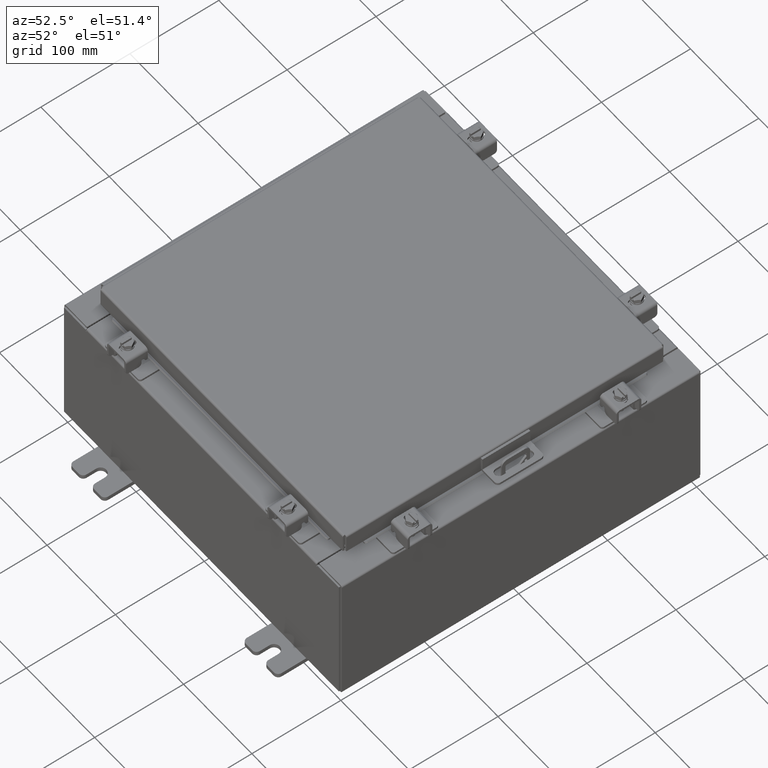
[diagram: clean part render]
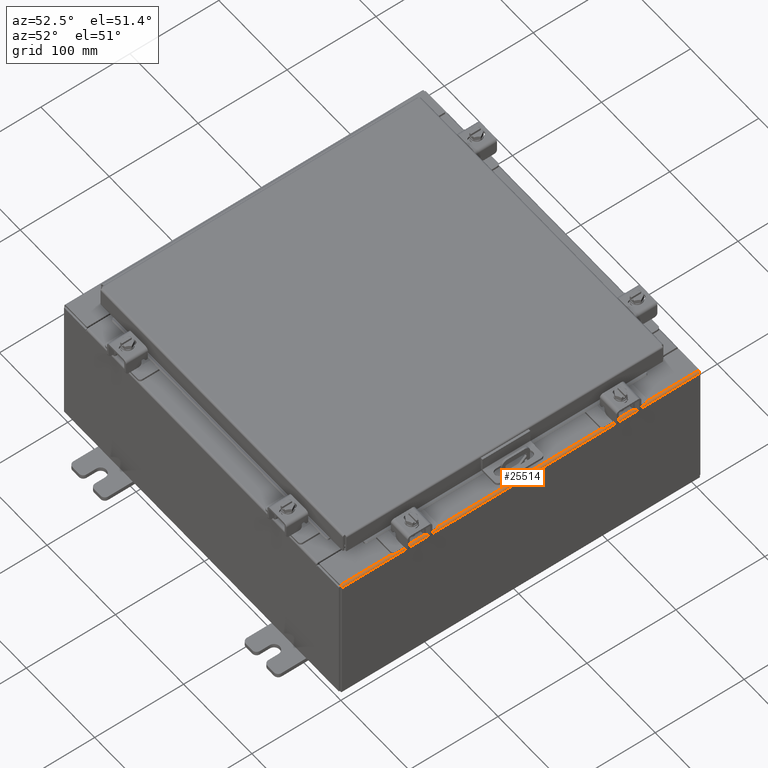
[diagram: same view with one face highlighted and labeled with its STEP entity id]
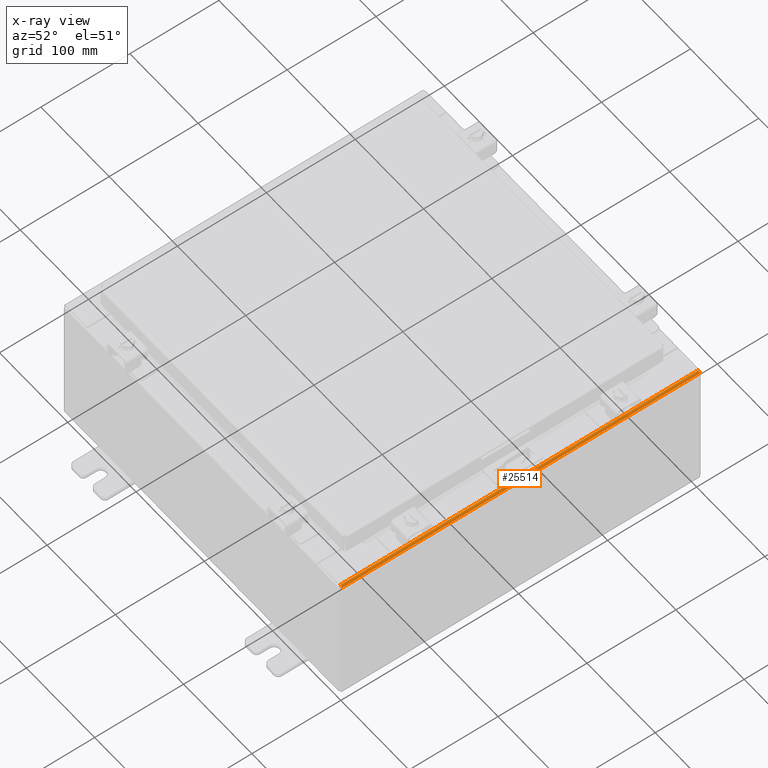
[diagram: x-ray of the same camera — body ghosted, the highlighted face saturated]
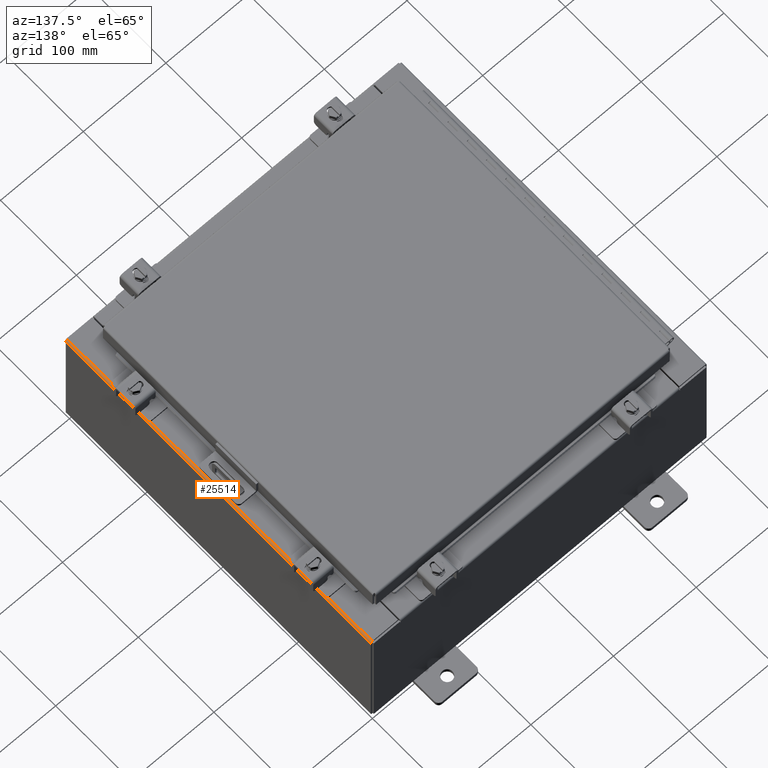
[diagram: same view with one face highlighted and labeled with its STEP entity id]
A machine part, auxiliary view. The second image highlights one B-rep face of the part: STEP entity #25514.
The next image is the same camera in x-ray: the body ghosted, the highlighted face saturated — about 0% of this face is hidden behind the body in this view.
A second angle (auxiliary view) of the same face is appended — the face is thin or edge-on in the first view.
In plain terms, the highlighted cylindrical surface (edge-blend (fillet) strip) has radius 2.2276 mm, axis along (0, 1, 0).
Its self-contained STEP definition (entity closure, byte-faithful):
#2 = EDGE_CURVE ( 'NONE', #3534, #548, #11183, .T. ) ;
#11 = AXIS2_PLACEMENT_3D ( 'NONE', #1379, #13416, #11382 ) ;
#112 = EDGE_CURVE ( 'NONE', #23747, #25013, #3981, .T. ) ;
#487 = CARTESIAN_POINT ( 'NONE',  ( 8.000000000000019500, -7.925300000000000000, 5.837600000000001000 ) ) ;
#548 = VERTEX_POINT ( 'NONE', #23756 ) ;
#1379 = CARTESIAN_POINT ( 'NONE',  ( 7.912300000000019700, 7.925300000000000000, 5.837600000000001000 ) ) ;
#2254 = CYLINDRICAL_SURFACE ( 'NONE', #11, 0.08770000000000026400 ) ;
#3534 = VERTEX_POINT ( 'NONE', #487 ) ;
#3981 = CIRCLE ( 'NONE', #10032, 0.08770000000000026400 ) ;
#5161 = EDGE_LOOP ( 'NONE', ( #6844, #15019, #10814, #18600 ) ) ;
#6547 = LINE ( 'NONE', #23623, #16619 ) ;
#6763 = EDGE_CURVE ( 'NONE', #23747, #548, #13440, .T. ) ;
#6844 = ORIENTED_EDGE ( 'NONE', *, *, #14342, .F. ) ;
#7123 = CARTESIAN_POINT ( 'NONE',  ( 7.912300000000019700, -7.925300000000000000, 5.925300000000001800 ) ) ;
#8066 = CARTESIAN_POINT ( 'NONE',  ( 7.912300000000019700, -7.925300000000000000, 5.837600000000001000 ) ) ;
#10032 = AXIS2_PLACEMENT_3D ( 'NONE', #23343, #19641, #14727 ) ;
#10814 = ORIENTED_EDGE ( 'NONE', *, *, #6763, .T. ) ;
#11183 = CIRCLE ( 'NONE', #24093, 0.08770000000000026400 ) ;
#11382 = DIRECTION ( 'NONE',  ( 1.245996804407870000E-014, 0.0000000000000000000, 1.000000000000000000 ) ) ;
#12546 = DIRECTION ( 'NONE',  ( -0.0000000000000000000, -1.000000000000000000, -0.0000000000000000000 ) ) ;
#12948 = FACE_OUTER_BOUND ( 'NONE', #5161, .T. ) ;
#13179 = DIRECTION ( 'NONE',  ( 0.0000000000000000000, 0.0000000000000000000, 1.000000000000000000 ) ) ;
#13416 = DIRECTION ( 'NONE',  ( 0.0000000000000000000, 1.000000000000000000, 0.0000000000000000000 ) ) ;
#13440 = LINE ( 'NONE', #7123, #22913 ) ;
#14035 = CARTESIAN_POINT ( 'NONE',  ( 8.000000000000019500, 7.925300000000000000, 5.837600000000001000 ) ) ;
#14342 = EDGE_CURVE ( 'NONE', #25013, #3534, #6547, .T. ) ;
#14727 = DIRECTION ( 'NONE',  ( 0.0000000000000000000, 0.0000000000000000000, 1.000000000000000000 ) ) ;
#15019 = ORIENTED_EDGE ( 'NONE', *, *, #112, .F. ) ;
#16619 = VECTOR ( 'NONE', #25678, 39.37007874015748100 ) ;
#18600 = ORIENTED_EDGE ( 'NONE', *, *, #2, .F. ) ;
#19641 = DIRECTION ( 'NONE',  ( 0.0000000000000000000, 1.000000000000000000, 0.0000000000000000000 ) ) ;
#22913 = VECTOR ( 'NONE', #25305, 39.37007874015748100 ) ;
#22927 = CARTESIAN_POINT ( 'NONE',  ( 7.912300000000019700, 7.925300000000000000, 5.925300000000001800 ) ) ;
#23343 = CARTESIAN_POINT ( 'NONE',  ( 7.912300000000019700, 7.925300000000000000, 5.837600000000001000 ) ) ;
#23623 = CARTESIAN_POINT ( 'NONE',  ( 8.000000000000019500, 7.925300000000000000, 5.837600000000001000 ) ) ;
#23747 = VERTEX_POINT ( 'NONE', #22927 ) ;
#23756 = CARTESIAN_POINT ( 'NONE',  ( 7.912300000000019700, -7.925300000000000000, 5.925300000000001800 ) ) ;
#24093 = AXIS2_PLACEMENT_3D ( 'NONE', #8066, #12546, #13179 ) ;
#25013 = VERTEX_POINT ( 'NONE', #14035 ) ;
#25305 = DIRECTION ( 'NONE',  ( -0.0000000000000000000, -1.000000000000000000, -0.0000000000000000000 ) ) ;
#25514 = ADVANCED_FACE ( 'NONE', ( #12948 ), #2254, .T. ) ;
#25678 = DIRECTION ( 'NONE',  ( -0.0000000000000000000, -1.000000000000000000, -0.0000000000000000000 ) ) ;